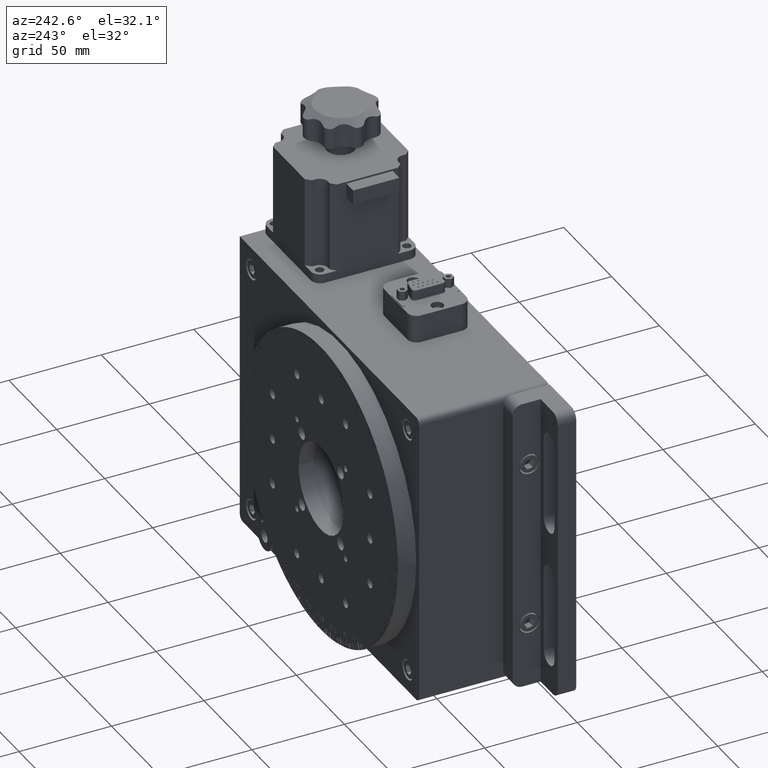
[diagram: clean part render]
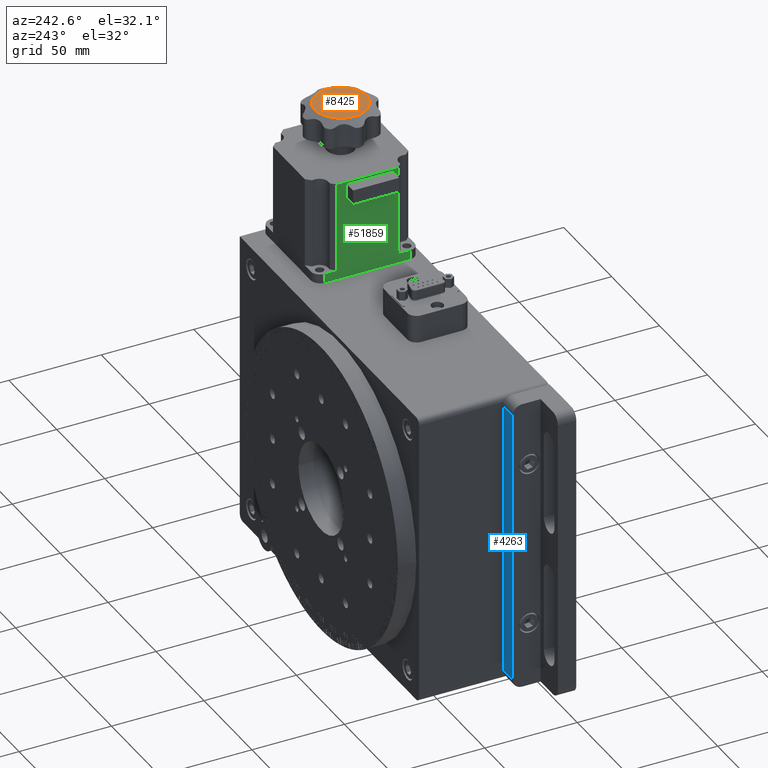
[diagram: same view with three faces highlighted in distinct colors, each labeled with its STEP entity id]
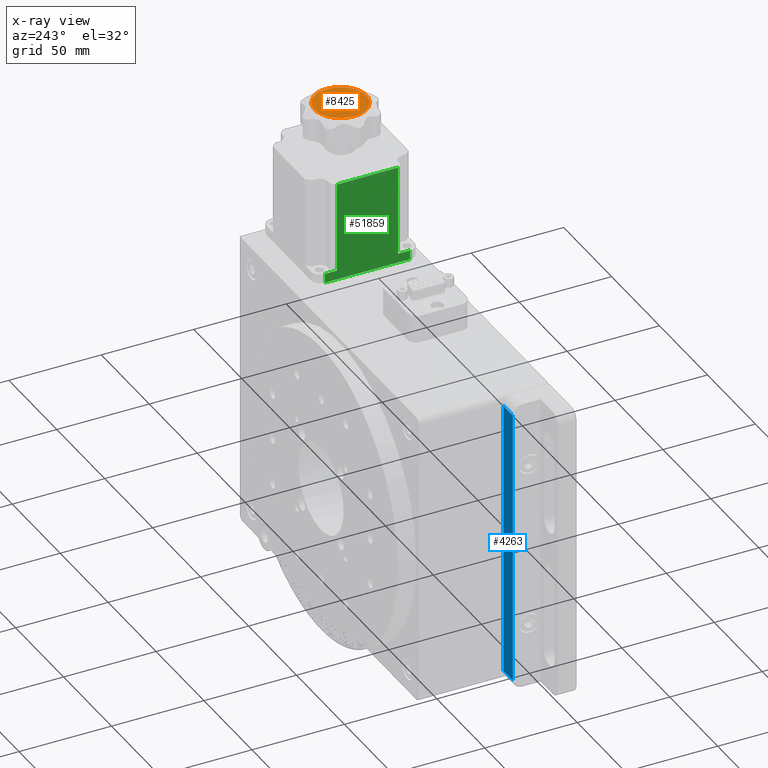
[diagram: x-ray of the same camera — body ghosted, the three highlighted faces saturated]
A machine part, auxiliary view with three faces highlighted in distinct colors.
The next image is the same camera in x-ray (body ghosted, the three faces saturated) — at least one of them is partly hidden behind the body in this view.
Their STEP definitions:

[orange] entity #8425 — the highlighted planar face has unit normal (-0, -0, -1).
#3414 = EDGE_LOOP ( 'NONE', ( #82264, #64350 ) ) ;
#8425 = ADVANCED_FACE ( 'NONE', ( #34869 ), #14732, .F. ) ;
#14732 = PLANE ( 'NONE',  #67785 ) ;
#33972 = AXIS2_PLACEMENT_3D ( 'NONE', #97651, #48270, #105907 ) ;
#34681 = CARTESIAN_POINT ( 'NONE',  ( 238.4999999999999700, 23.00000000000000000, 159.8000000000000100 ) ) ;
#34869 = FACE_OUTER_BOUND ( 'NONE', #3414, .T. ) ;
#36274 = DIRECTION ( 'NONE',  ( 1.163031447553805800E-017, 1.979074067922844300E-017, 1.000000000000000000 ) ) ;
#38354 = CIRCLE ( 'NONE', #33972, 13.99999999999998400 ) ;
#47888 = CARTESIAN_POINT ( 'NONE',  ( 262.8274636437144000, 6.067297206429296700, 159.8000000000000100 ) ) ;
#48270 = DIRECTION ( 'NONE',  ( 1.163031447553805800E-017, 1.979074067922844300E-017, 1.000000000000000000 ) ) ;
#53235 = AXIS2_PLACEMENT_3D ( 'NONE', #85623, #36274, #93891 ) ;
#56009 = CIRCLE ( 'NONE', #53235, 13.99999999999998400 ) ;
#56193 = DIRECTION ( 'NONE',  ( 1.000000000000000000, -1.426207582058281300E-015, -1.163031447553618000E-017 ) ) ;
#58601 = EDGE_CURVE ( 'NONE', #94276, #92203, #56009, .T. ) ;
#64350 = ORIENTED_EDGE ( 'NONE', *, *, #105270, .T. ) ;
#67785 = AXIS2_PLACEMENT_3D ( 'NONE', #47888, #105536, #56193 ) ;
#82217 = CARTESIAN_POINT ( 'NONE',  ( 266.4999999999999400, 22.99999999999995700, 159.8000000000000100 ) ) ;
#82264 = ORIENTED_EDGE ( 'NONE', *, *, #58601, .T. ) ;
#85623 = CARTESIAN_POINT ( 'NONE',  ( 252.4999999999999400, 22.99999999999997900, 159.8000000000000100 ) ) ;
#92203 = VERTEX_POINT ( 'NONE', #82217 ) ;
#93891 = DIRECTION ( 'NONE',  ( -1.000000000000000000, 1.486905836551550700E-015, 0.0000000000000000000 ) ) ;
#94276 = VERTEX_POINT ( 'NONE', #34681 ) ;
#97651 = CARTESIAN_POINT ( 'NONE',  ( 252.4999999999999400, 22.99999999999997900, 159.8000000000000100 ) ) ;
#105270 = EDGE_CURVE ( 'NONE', #92203, #94276, #38354, .T. ) ;
#105536 = DIRECTION ( 'NONE',  ( -1.163031447553620800E-017, -1.979074067922844300E-017, -1.000000000000000000 ) ) ;
#105907 = DIRECTION ( 'NONE',  ( -1.000000000000000000, 1.486905836551550700E-015, 0.0000000000000000000 ) ) ;

[blue] entity #4263 — the highlighted planar face has unit normal (0, -1, -0).
#618 = AXIS2_PLACEMENT_3D ( 'NONE', #5613, #63306, #13862 ) ;
#3777 = CARTESIAN_POINT ( 'NONE',  ( 93.49999999999992900, 17.49999999999999300, 74.99999999999998600 ) ) ;
#4263 = ADVANCED_FACE ( 'NONE', ( #24522 ), #13150, .F. ) ;
#5613 = CARTESIAN_POINT ( 'NONE',  ( 83.49999999999991500, 17.49999999999996400, 79.99999999999998600 ) ) ;
#6109 = VERTEX_POINT ( 'NONE', #102936 ) ;
#7912 = LINE ( 'NONE', #15638, #51737 ) ;
#13150 = PLANE ( 'NONE',  #618 ) ;
#13862 = DIRECTION ( 'NONE',  ( -5.551115123125808600E-017, 2.312964634635742300E-018, -1.000000000000000000 ) ) ;
#15638 = CARTESIAN_POINT ( 'NONE',  ( 83.49999999999991500, 17.49999999999996400, 74.99999999999998600 ) ) ;
#19253 = CARTESIAN_POINT ( 'NONE',  ( 93.49999999999992900, 17.49999999999999300, 79.99999999999998600 ) ) ;
#19412 = VECTOR ( 'NONE', #76899, 1000.000000000000000 ) ;
#20304 = CARTESIAN_POINT ( 'NONE',  ( 83.49999999999991500, 17.49999999999996400, 79.99999999999998600 ) ) ;
#20955 = EDGE_CURVE ( 'NONE', #79533, #6109, #88918, .T. ) ;
#22556 = DIRECTION ( 'NONE',  ( -1.000000000000000000, -1.046312889825572800E-016, 5.551115123125755600E-017 ) ) ;
#24522 = FACE_OUTER_BOUND ( 'NONE', #96758, .T. ) ;
#26793 = EDGE_CURVE ( 'NONE', #45889, #77319, #7912, .T. ) ;
#30470 = CARTESIAN_POINT ( 'NONE',  ( 83.49999999999991500, 17.49999999999999300, -75.00000000000001400 ) ) ;
#45889 = VERTEX_POINT ( 'NONE', #87950 ) ;
#51737 = VECTOR ( 'NONE', #81630, 1000.000000000000000 ) ;
#61120 = CARTESIAN_POINT ( 'NONE',  ( 93.49999999999987200, 17.49999999999999300, -75.00000000000001400 ) ) ;
#61458 = DIRECTION ( 'NONE',  ( -5.551115123125808600E-017, 2.312964634635742300E-018, -1.000000000000000000 ) ) ;
#62730 = ORIENTED_EDGE ( 'NONE', *, *, #67434, .T. ) ;
#63306 = DIRECTION ( 'NONE',  ( 1.046312889825572800E-016, -1.000000000000000000, -2.312964634635748100E-018 ) ) ;
#63316 = LINE ( 'NONE', #19253, #19412 ) ;
#66981 = VECTOR ( 'NONE', #22556, 1000.000000000000000 ) ;
#67434 = EDGE_CURVE ( 'NONE', #77319, #79533, #63316, .T. ) ;
#70783 = ORIENTED_EDGE ( 'NONE', *, *, #20955, .T. ) ;
#71438 = LINE ( 'NONE', #20304, #90800 ) ;
#76899 = DIRECTION ( 'NONE',  ( -5.551115123125808600E-017, 2.312964634635742300E-018, -1.000000000000000000 ) ) ;
#77319 = VERTEX_POINT ( 'NONE', #3777 ) ;
#77344 = EDGE_CURVE ( 'NONE', #45889, #6109, #71438, .T. ) ;
#79533 = VERTEX_POINT ( 'NONE', #61120 ) ;
#81630 = DIRECTION ( 'NONE',  ( 1.000000000000000000, 1.046312889825572800E-016, -5.551115123125755600E-017 ) ) ;
#82716 = ORIENTED_EDGE ( 'NONE', *, *, #26793, .T. ) ;
#84485 = ORIENTED_EDGE ( 'NONE', *, *, #77344, .F. ) ;
#87950 = CARTESIAN_POINT ( 'NONE',  ( 83.49999999999991500, 17.49999999999996400, 74.99999999999998600 ) ) ;
#88918 = LINE ( 'NONE', #30470, #66981 ) ;
#90800 = VECTOR ( 'NONE', #61458, 1000.000000000000000 ) ;
#96758 = EDGE_LOOP ( 'NONE', ( #84485, #82716, #62730, #70783 ) ) ;
#102936 = CARTESIAN_POINT ( 'NONE',  ( 83.49999999999991500, 17.49999999999999300, -75.00000000000001400 ) ) ;

[green] entity #51859 — the highlighted planar face has unit normal (1, 0, -0).
#783 = VERTEX_POINT ( 'NONE', #70525 ) ;
#1592 = LINE ( 'NONE', #57028, #86624 ) ;
#1660 = VECTOR ( 'NONE', #65057, 1000.000000000000000 ) ;
#1817 = EDGE_CURVE ( 'NONE', #17188, #81474, #67377, .T. ) ;
#4381 = CARTESIAN_POINT ( 'NONE',  ( 224.4999999999999400, 45.99999999999998600, 80.00000000000009900 ) ) ;
#5388 = DIRECTION ( 'NONE',  ( -1.641121256918013000E-017, 6.319003473856955200E-017, -1.000000000000000000 ) ) ;
#6084 = ORIENTED_EDGE ( 'NONE', *, *, #106260, .T. ) ;
#8926 = EDGE_CURVE ( 'NONE', #17188, #82302, #16698, .T. ) ;
#10609 = EDGE_CURVE ( 'NONE', #81474, #101503, #78191, .T. ) ;
#11010 = CARTESIAN_POINT ( 'NONE',  ( 224.4999999999999400, -5.204170427930421300E-014, 80.00000000000009900 ) ) ;
#11322 = ORIENTED_EDGE ( 'NONE', *, *, #55301, .T. ) ;
#12414 = VECTOR ( 'NONE', #42985, 1000.000000000000000 ) ;
#15381 = VERTEX_POINT ( 'NONE', #75577 ) ;
#16118 = VECTOR ( 'NONE', #39141, 1000.000000000000000 ) ;
#16463 = VERTEX_POINT ( 'NONE', #37842 ) ;
#16698 = LINE ( 'NONE', #37122, #36022 ) ;
#17188 = VERTEX_POINT ( 'NONE', #11010 ) ;
#18155 = CARTESIAN_POINT ( 'NONE',  ( 224.5000000000000600, 50.99999999999997900, 85.00000000000009900 ) ) ;
#19093 = CARTESIAN_POINT ( 'NONE',  ( 224.4999999999999400, 45.99999999999998600, 80.00000000000009900 ) ) ;
#21660 = ORIENTED_EDGE ( 'NONE', *, *, #10609, .T. ) ;
#27005 = AXIS2_PLACEMENT_3D ( 'NONE', #86191, #36886, #94498 ) ;
#28743 = DIRECTION ( 'NONE',  ( -1.536469364436600800E-016, 1.000000000000000000, 6.319003473856955200E-017 ) ) ;
#28763 = VERTEX_POINT ( 'NONE', #44855 ) ;
#31985 = CARTESIAN_POINT ( 'NONE',  ( 224.4999999999999400, 6.429999999999981100, 85.00000000000002800 ) ) ;
#35080 = ORIENTED_EDGE ( 'NONE', *, *, #44097, .T. ) ;
#36022 = VECTOR ( 'NONE', #28743, 1000.000000000000000 ) ;
#36844 = LINE ( 'NONE', #59944, #58755 ) ;
#36886 = DIRECTION ( 'NONE',  ( 1.000000000000000000, 1.536469364436600800E-016, -1.641121256918013900E-017 ) ) ;
#37122 = CARTESIAN_POINT ( 'NONE',  ( 224.5000000000000600, 50.99999999999997900, 80.00000000000009900 ) ) ;
#37842 = CARTESIAN_POINT ( 'NONE',  ( 224.4999999999999400, 39.56999999999999300, 133.7999999999999800 ) ) ;
#38426 = LINE ( 'NONE', #62009, #57765 ) ;
#39141 = DIRECTION ( 'NONE',  ( 1.641121256918013000E-017, -6.319003473856955200E-017, 1.000000000000000000 ) ) ;
#40826 = DIRECTION ( 'NONE',  ( -1.536469364436600800E-016, 1.000000000000000000, 6.319003473856955200E-017 ) ) ;
#42985 = DIRECTION ( 'NONE',  ( -1.536469364436600800E-016, 1.000000000000000000, 6.319003473856955200E-017 ) ) ;
#44097 = EDGE_CURVE ( 'NONE', #16463, #783, #38426, .T. ) ;
#44855 = CARTESIAN_POINT ( 'NONE',  ( 224.4999999999999400, 45.99999999999998600, 85.00000000000009900 ) ) ;
#46856 = ORIENTED_EDGE ( 'NONE', *, *, #83394, .T. ) ;
#47460 = VECTOR ( 'NONE', #86887, 1000.000000000000000 ) ;
#49673 = ORIENTED_EDGE ( 'NONE', *, *, #51316, .T. ) ;
#51316 = EDGE_CURVE ( 'NONE', #783, #28763, #36844, .T. ) ;
#51859 = ADVANCED_FACE ( 'NONE', ( #90829 ), #53056, .F. ) ;
#53056 = PLANE ( 'NONE',  #27005 ) ;
#55301 = EDGE_CURVE ( 'NONE', #28763, #82302, #69362, .T. ) ;
#57028 = CARTESIAN_POINT ( 'NONE',  ( 224.5000000000000600, 50.99999999999997900, 133.7999999999999800 ) ) ;
#57765 = VECTOR ( 'NONE', #5388, 1000.000000000000000 ) ;
#58755 = VECTOR ( 'NONE', #101345, 1000.000000000000000 ) ;
#59944 = CARTESIAN_POINT ( 'NONE',  ( 224.5000000000000600, 50.99999999999997900, 85.00000000000009900 ) ) ;
#62009 = CARTESIAN_POINT ( 'NONE',  ( 224.4999999999999400, 39.56999999999999300, 80.00000000000009900 ) ) ;
#65057 = DIRECTION ( 'NONE',  ( 1.641121256918013000E-017, -6.319003473856955200E-017, 1.000000000000000000 ) ) ;
#67377 = LINE ( 'NONE', #81297, #1660 ) ;
#69362 = LINE ( 'NONE', #4381, #47460 ) ;
#70525 = CARTESIAN_POINT ( 'NONE',  ( 224.4999999999999400, 39.56999999999999300, 85.00000000000002800 ) ) ;
#71865 = CARTESIAN_POINT ( 'NONE',  ( 224.4999999999999400, 6.429999999999977500, 133.7999999999999800 ) ) ;
#75577 = CARTESIAN_POINT ( 'NONE',  ( 224.4999999999999400, 6.429999999999984600, 133.7999999999999800 ) ) ;
#76334 = EDGE_LOOP ( 'NONE', ( #21660, #6084, #46856, #35080, #49673, #11322, #105036, #105666 ) ) ;
#78191 = LINE ( 'NONE', #18155, #12414 ) ;
#81297 = CARTESIAN_POINT ( 'NONE',  ( 224.4999999999999400, -5.204170427930421300E-014, 80.00000000000009900 ) ) ;
#81474 = VERTEX_POINT ( 'NONE', #83371 ) ;
#82302 = VERTEX_POINT ( 'NONE', #19093 ) ;
#83371 = CARTESIAN_POINT ( 'NONE',  ( 224.4999999999999400, -3.816391647148975600E-014, 85.00000000000002800 ) ) ;
#83394 = EDGE_CURVE ( 'NONE', #15381, #16463, #1592, .T. ) ;
#86191 = CARTESIAN_POINT ( 'NONE',  ( 224.5000000000000600, 50.99999999999997900, 80.00000000000009900 ) ) ;
#86624 = VECTOR ( 'NONE', #40826, 1000.000000000000000 ) ;
#86887 = DIRECTION ( 'NONE',  ( -1.641121256918013000E-017, 6.319003473856955200E-017, -1.000000000000000000 ) ) ;
#90829 = FACE_OUTER_BOUND ( 'NONE', #76334, .T. ) ;
#94498 = DIRECTION ( 'NONE',  ( 1.536469364436600800E-016, -1.000000000000000000, -6.319003473856955200E-017 ) ) ;
#101345 = DIRECTION ( 'NONE',  ( -1.536469364436600800E-016, 1.000000000000000000, 6.319003473856955200E-017 ) ) ;
#101503 = VERTEX_POINT ( 'NONE', #31985 ) ;
#103756 = LINE ( 'NONE', #71865, #16118 ) ;
#105036 = ORIENTED_EDGE ( 'NONE', *, *, #8926, .F. ) ;
#105666 = ORIENTED_EDGE ( 'NONE', *, *, #1817, .T. ) ;
#106260 = EDGE_CURVE ( 'NONE', #101503, #15381, #103756, .T. ) ;